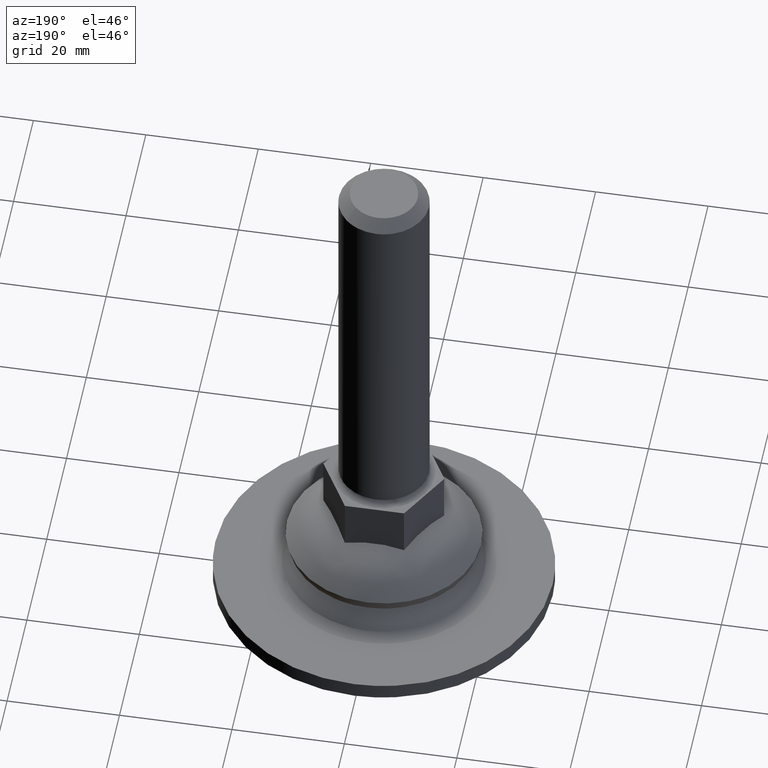
[diagram: clean part render]
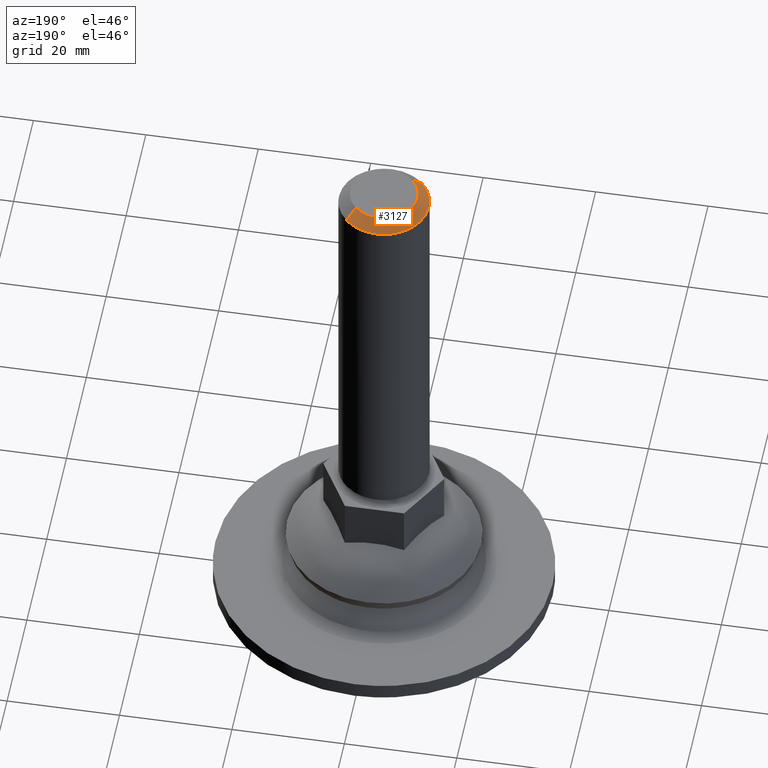
[diagram: same view with one face highlighted and labeled with its STEP entity id]
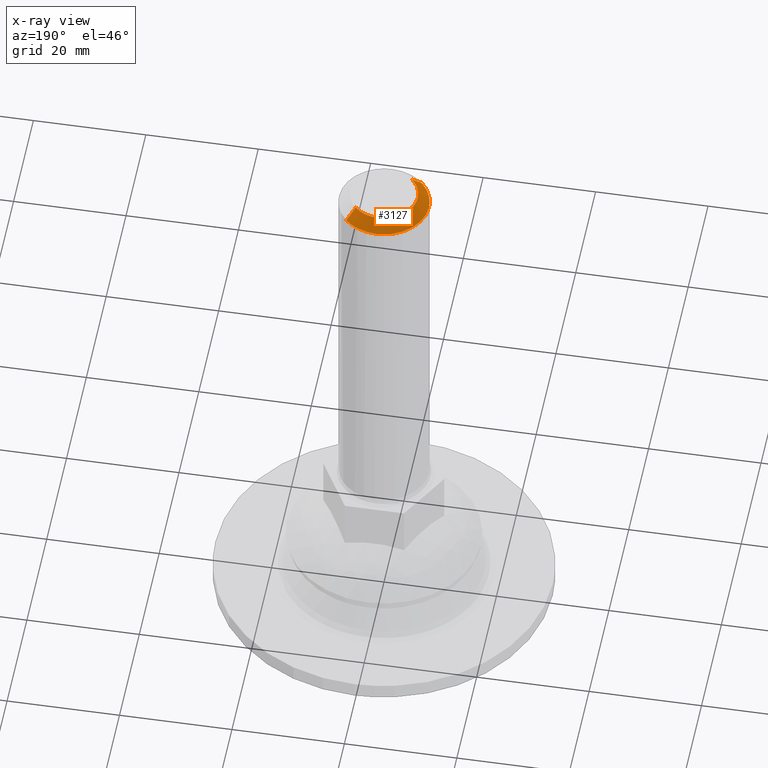
[diagram: x-ray of the same camera — body ghosted, the highlighted face saturated]
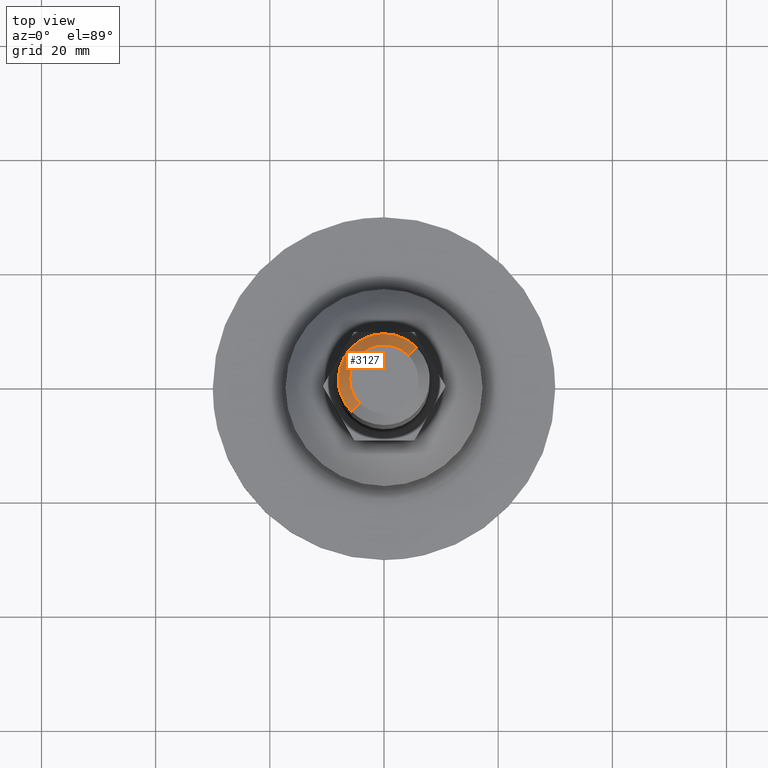
[diagram: same view with one face highlighted and labeled with its STEP entity id]
A machine part, auxiliary view. The second image highlights one B-rep face of the part: STEP entity #3127.
The next image is the same camera in x-ray: the body ghosted, the highlighted face saturated — about 0% of this face is hidden behind the body in this view.
A second angle (top view) of the same face is appended — the face is thin or edge-on in the first view.
In plain terms, the highlighted face is a freeform B-spline surface patch.
Its self-contained STEP definition (entity closure, byte-faithful):
#2752=CARTESIAN_POINT('',(-6.0,0.0,96.0));
#2753=VERTEX_POINT('',#2752);
#2754=CARTESIAN_POINT('',(-4.279502167951721,-4.205455067943984,96.000000246277807));
#2755=VERTEX_POINT('',#2754);
#2756=CARTESIAN_POINT('',(-6.0,0.0,96.0));
#2757=CARTESIAN_POINT('',(-6.000231243323753,-0.582535048104755,96.000000034114208));
#2758=CARTESIAN_POINT('',(-5.871741031561014,-1.456140546347804,96.000000085273754));
#2759=CARTESIAN_POINT('',(-5.447033099454679,-2.570403516839888,96.000000150526773));
#2760=CARTESIAN_POINT('',(-4.966748645978064,-3.417591497319493,96.000000200139098));
#2761=CARTESIAN_POINT('',(-4.534705115673466,-3.945808729053281,96.000000231072676));
#2762=CARTESIAN_POINT('',(-4.279502167951721,-4.205455067943984,96.000000246277807));
#2763=B_SPLINE_CURVE_WITH_KNOTS('',3,(#2756,#2757,#2758,#2759,#2760,#2761,#2762),.UNSPECIFIED.,.F.,.U.,(4,1,1,1,4),(0.000000023006583,1.747522497705068,2.621281605118913,3.567857170567338,4.660057409454092),.UNSPECIFIED.);
#2764=EDGE_CURVE('',#2753,#2755,#2763,.T.);
#2794=CARTESIAN_POINT('',(4.279502167951698,4.205455067943962,96.000000246277835));
#2795=VERTEX_POINT('',#2794);
#2806=CARTESIAN_POINT('',(-0.000001970522555,5.999999999999676,96.000000000000014));
#2807=VERTEX_POINT('',#2806);
#2808=CARTESIAN_POINT('',(4.279502167951698,4.205455067943962,96.000000246277835));
#2809=CARTESIAN_POINT('',(4.018617723980338,4.470987544105686,96.000000231264366));
#2810=CARTESIAN_POINT('',(3.428154674934059,4.969325033083565,96.000000197284407));
#2811=CARTESIAN_POINT('',(2.360946507146670,5.564627036940585,96.000000135868348));
#2812=CARTESIAN_POINT('',(1.191176259682389,5.923583547537617,96.000000068550023));
#2813=CARTESIAN_POINT('',(0.372244608893317,6.000030840703523,96.000000021422153));
#2814=CARTESIAN_POINT('',(-0.000001970522555,5.999999999999676,96.000000000000014));
#2815=B_SPLINE_CURVE_WITH_KNOTS('',3,(#2808,#2809,#2810,#2811,#2812,#2813,#2814),.UNSPECIFIED.,.F.,.U.,(4,1,1,1,4),(0.000000025710256,1.116744830334267,2.307955121993388,3.648036295247763,4.764781099906262),.UNSPECIFIED.);
#2816=EDGE_CURVE('',#2795,#2807,#2815,.T.);
#2818=CARTESIAN_POINT('',(-0.000001970522555,5.999999999999676,96.000000000000014));
#2819=CARTESIAN_POINT('',(-0.417244745294773,6.000070714515135,96.000000000000185));
#2820=CARTESIAN_POINT('',(-1.079892254561558,5.930576122482922,95.999999999999631));
#2821=CARTESIAN_POINT('',(-2.098966744521479,5.648577360495867,96.000000000000256));
#2822=CARTESIAN_POINT('',(-3.130445075330234,5.176230853383162,96.000000000000043));
#2823=CARTESIAN_POINT('',(-4.094771756111705,4.442537251423081,95.999999999999559));
#2824=CARTESIAN_POINT('',(-4.823524646648966,3.607915741847212,96.000000000000227));
#2825=CARTESIAN_POINT('',(-5.363365183190319,2.755463648435022,95.999999999999943));
#2826=CARTESIAN_POINT('',(-5.854227443938780,1.570674725479129,95.999999999999687));
#2827=CARTESIAN_POINT('',(-6.000252079583983,0.589075842624000,96.000000000000782));
#2828=CARTESIAN_POINT('',(-6.0,0.0,96.0));
#2829=B_SPLINE_CURVE_WITH_KNOTS('',3,(#2818,#2819,#2820,#2821,#2822,#2823,#2824,#2825,#2826,#2827,#2828),.UNSPECIFIED.,.F.,.U.,(4,1,1,1,1,1,1,1,4),(0.000000089754332,1.251717397242365,1.988051021647583,3.166156899868901,4.638811947653434,5.595986020708327,6.479572030994175,7.657681997862894,9.424835986627816),.UNSPECIFIED.);
#2830=EDGE_CURVE('',#2807,#2753,#2829,.T.);
#3042=CARTESIAN_POINT('',(-4.243840172467366,-4.170410122584099,96.050000000000011));
#3043=CARTESIAN_POINT('',(-8.414250295051465,0.073430049883267,96.050000000000011));
#3044=CARTESIAN_POINT('',(-4.170410122584099,4.243840172467366,96.050000000000011));
#3045=CARTESIAN_POINT('',(0.073430049883267,8.414250295051465,96.050000000000011));
#3046=CARTESIAN_POINT('',(4.243840172467366,4.170410122584099,96.050000000000011));
#3047=CARTESIAN_POINT('',(-5.742557678752599,-5.643195714194169,93.948750000000004));
#3048=CARTESIAN_POINT('',(-11.385753392946766,0.099361964558430,93.948750000000004));
#3049=CARTESIAN_POINT('',(-5.643195714194169,5.742557678752599,93.948750000000004));
#3050=CARTESIAN_POINT('',(0.099361964558430,11.385753392946766,93.948750000000004));
#3051=CARTESIAN_POINT('',(5.742557678752599,5.643195714194169,93.948750000000004));
#3059=(BOUNDED_SURFACE()B_SPLINE_SURFACE(2,1,((#3042,#3047),(#3043,#3048),(#3044,#3049),(#3045,#3050),(#3046,#3051)),.UNSPECIFIED.,.F.,.F.,.U.)B_SPLINE_SURFACE_WITH_KNOTS((3,2,3),(2,2),(0.0,13.339747776225510,26.679495552451030),(0.0,2.971616247936486),.UNSPECIFIED.)GEOMETRIC_REPRESENTATION_ITEM()RATIONAL_B_SPLINE_SURFACE(((1.0,1.0),(0.707106781186548,0.707106781186548),(1.0,1.0),(0.707106781186548,0.707106781186548),(1.0,1.0)))REPRESENTATION_ITEM('')SURFACE());
#3060=CARTESIAN_POINT('',(-5.706003812383617,-5.607274329756727,93.999999897581560));
#3061=VERTEX_POINT('',#3060);
#3062=CARTESIAN_POINT('',(-8.0,0.0,94.0));
#3063=VERTEX_POINT('',#3062);
#3064=CARTESIAN_POINT('',(-5.706003812383617,-5.607274329756727,93.999999897581560));
#3065=CARTESIAN_POINT('',(-6.046278558325930,-5.261082220040088,93.999999903904808));
#3066=CARTESIAN_POINT('',(-6.642901504321406,-4.531629304118789,93.999999917228621));
#3067=CARTESIAN_POINT('',(-7.324319437808168,-3.312587518308685,93.999999939494657));
#3068=CARTESIAN_POINT('',(-7.854781776172912,-1.812146279416042,93.999999966900461));
#3069=CARTESIAN_POINT('',(-8.000172058245180,-0.679606881198276,93.999999987587245));
#3070=CARTESIAN_POINT('',(-8.0,0.0,94.0));
#3071=B_SPLINE_CURVE_WITH_KNOTS('',3,(#3064,#3065,#3066,#3067,#3068,#3069,#3070),.UNSPECIFIED.,.F.,.U.,(4,1,1,1,4),(0.000000018089476,1.456266788230057,2.815467784469796,4.174630025855157,6.213410381146259),.UNSPECIFIED.);
#3072=EDGE_CURVE('',#3061,#3063,#3071,.T.);
#3073=ORIENTED_EDGE('',*,*,#3072,.F.);
#3074=CARTESIAN_POINT('',(-4.279502167951721,-4.205455067943984,96.000000246277807));
#3075=CARTESIAN_POINT('',(-5.706003812383617,-5.607274329756727,93.999999897581560));
#3076=QUASI_UNIFORM_CURVE('',1,(#3074,#3075),.UNSPECIFIED.,.F.,.U.);
#3077=EDGE_CURVE('',#2755,#3061,#3076,.T.);
#3078=ORIENTED_EDGE('',*,*,#3077,.F.);
#3079=ORIENTED_EDGE('',*,*,#2764,.F.);
#3080=ORIENTED_EDGE('',*,*,#2830,.F.);
#3081=ORIENTED_EDGE('',*,*,#2816,.F.);
#3082=CARTESIAN_POINT('',(5.706003812383623,5.607274329756733,93.999999897581574));
#3083=VERTEX_POINT('',#3082);
#3084=CARTESIAN_POINT('',(4.279502167951698,4.205455067943962,96.000000246277835));
#3085=CARTESIAN_POINT('',(5.706003812383623,5.607274329756733,93.999999897581574));
#3086=QUASI_UNIFORM_CURVE('',1,(#3084,#3085),.UNSPECIFIED.,.F.,.U.);
#3087=EDGE_CURVE('',#2795,#3083,#3086,.T.);
#3088=ORIENTED_EDGE('',*,*,#3087,.T.);
#3089=CARTESIAN_POINT('',(5.506836925585615,5.802995254554674,94.000000000000014));
#3090=VERTEX_POINT('',#3089);
#3091=CARTESIAN_POINT('',(5.506836925585615,5.802995254554674,94.000000000000014));
#3092=CARTESIAN_POINT('',(5.574356803127095,5.738921315413307,93.999999965854130));
#3093=CARTESIAN_POINT('',(5.640761045411946,5.673665984991286,93.999999931706867));
#3094=CARTESIAN_POINT('',(5.706003812383623,5.607274329756733,93.999999897581574));
#3095=B_SPLINE_CURVE_WITH_KNOTS('',3,(#3091,#3092,#3093,#3094),.UNSPECIFIED.,.F.,.U.,(4,4),(1.686004E-011,0.279253544245992),.UNSPECIFIED.);
#3096=EDGE_CURVE('',#3090,#3083,#3095,.T.);
#3097=ORIENTED_EDGE('',*,*,#3096,.F.);
#3098=CARTESIAN_POINT('',(0.000001714694323,7.999999999999816,94.000000000000014));
#3099=VERTEX_POINT('',#3098);
#3100=CARTESIAN_POINT('',(0.000001714694323,7.999999999999816,94.000000000000014));
#3101=CARTESIAN_POINT('',(0.506148930952918,8.000047678445348,94.000000000000128));
#3102=CARTESIAN_POINT('',(1.550059688494766,7.900623423675173,93.999999999999631));
#3103=CARTESIAN_POINT('',(2.859906921463583,7.508860574113216,94.000000000000654));
#3104=CARTESIAN_POINT('',(4.229075564503952,6.846109742059939,93.999999999999147));
#3105=CARTESIAN_POINT('',(5.025063494639551,6.260429108711133,94.000000000000867));
#3106=CARTESIAN_POINT('',(5.506836925585615,5.802995254554674,94.000000000000014));
#3107=B_SPLINE_CURVE_WITH_KNOTS('',3,(#3100,#3101,#3102,#3103,#3104,#3105,#3106),.UNSPECIFIED.,.F.,.U.,(4,1,1,1,4),(0.000000016175665,1.518445172253683,3.131783613223094,4.080816135879238,6.073779891619036),.UNSPECIFIED.);
#3108=EDGE_CURVE('',#3099,#3090,#3107,.T.);
#3109=ORIENTED_EDGE('',*,*,#3108,.F.);
#3110=CARTESIAN_POINT('',(-8.0,0.0,94.0));
#3111=CARTESIAN_POINT('',(-8.000019157481198,0.458145633635905,94.000000000000014));
#3112=CARTESIAN_POINT('',(-7.912681589850481,1.472630233067095,94.000000000000114));
#3113=CARTESIAN_POINT('',(-7.562846428277871,2.707235506704941,93.999999999999901));
#3114=CARTESIAN_POINT('',(-7.017049613100415,3.898779209310271,94.000000000000270));
#3115=CARTESIAN_POINT('',(-6.377989904054349,4.894407782951817,93.999999999998565));
#3116=CARTESIAN_POINT('',(-5.445771275346076,5.910340645774573,94.000000000001236));
#3117=CARTESIAN_POINT('',(-4.435908890587927,6.698427942152526,93.999999999999744));
#3118=CARTESIAN_POINT('',(-3.171046782459546,7.394704858072212,93.999999999999702));
#3119=CARTESIAN_POINT('',(-1.701675136072067,7.880079426172009,94.000000000000966));
#3120=CARTESIAN_POINT('',(-0.556320496855242,8.000073383999341,93.999999999999119));
#3121=CARTESIAN_POINT('',(0.000001714694323,7.999999999999816,94.000000000000014));
#3122=B_SPLINE_CURVE_WITH_KNOTS('',3,(#3110,#3111,#3112,#3113,#3114,#3115,#3116,#3117,#3118,#3119,#3120,#3121),.UNSPECIFIED.,.F.,.U.,(4,1,1,1,1,1,1,1,1,4),(0.000000056678912,1.374452930895226,3.043436195966978,3.828848863433665,5.301491402977849,6.577718503257487,7.952191861544311,9.130310846398437,10.897483808358979,12.566450429438159),.UNSPECIFIED.);
#3123=EDGE_CURVE('',#3063,#3099,#3122,.T.);
#3124=ORIENTED_EDGE('',*,*,#3123,.F.);
#3125=EDGE_LOOP('',(#3073,#3078,#3079,#3080,#3081,#3088,#3097,#3109,#3124));
#3126=FACE_OUTER_BOUND('',#3125,.T.);
#3127=ADVANCED_FACE('',(#3126),#3059,.T.);